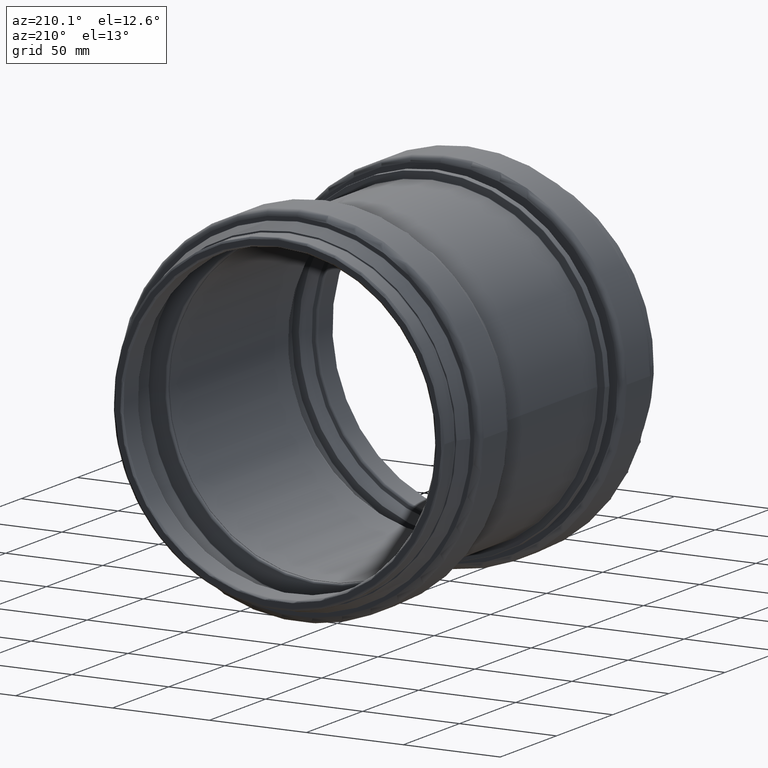
[diagram: clean part render]
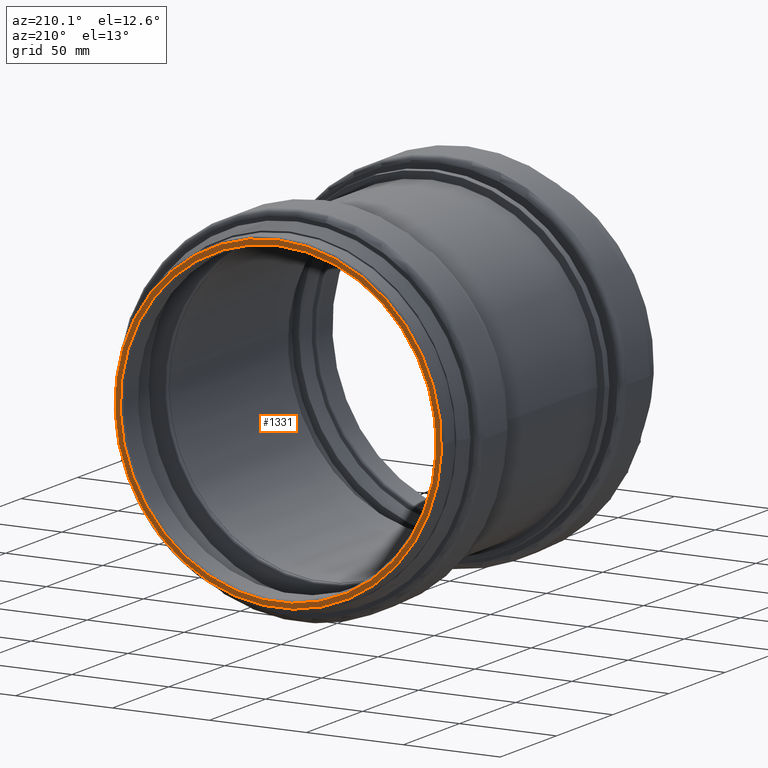
[diagram: same view with one face highlighted and labeled with its STEP entity id]
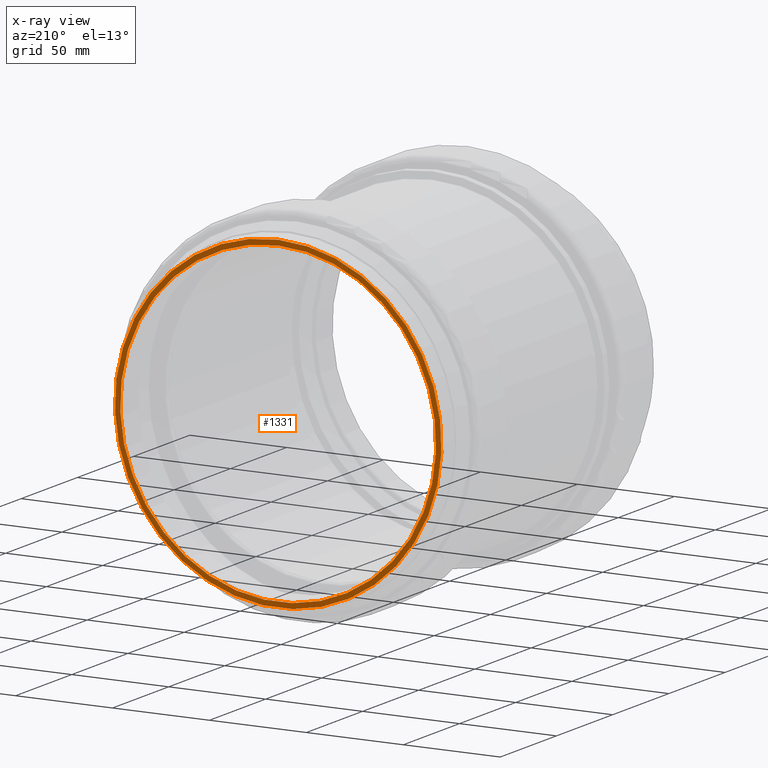
[diagram: x-ray of the same camera — body ghosted, the highlighted face saturated]
A machine part, auxiliary view. The second image highlights one B-rep face of the part: STEP entity #1331.
The next image is the same camera in x-ray: the body ghosted, the highlighted face saturated — about 0% of this face is hidden behind the body in this view.
In plain terms, the highlighted planar face has unit normal (0, 1, 0).
Its self-contained STEP definition (entity closure, byte-faithful):
#109=FACE_BOUND('',#244,.T.);
#119=PLANE('',#1518);
#162=FACE_OUTER_BOUND('',#243,.T.);
#243=EDGE_LOOP('',(#982));
#244=EDGE_LOOP('',(#983));
#370=CIRCLE('',#1514,81.5);
#374=CIRCLE('',#1519,84.2);
#520=VERTEX_POINT('',#2359);
#523=VERTEX_POINT('',#2367);
#684=EDGE_CURVE('',#520,#520,#370,.T.);
#688=EDGE_CURVE('',#523,#523,#374,.T.);
#982=ORIENTED_EDGE('',*,*,#688,.F.);
#983=ORIENTED_EDGE('',*,*,#684,.T.);
#1331=ADVANCED_FACE('',(#162,#109),#119,.T.);
#1514=AXIS2_PLACEMENT_3D('',#2360,#1896,#1897);
#1518=AXIS2_PLACEMENT_3D('',#2366,#1904,#1905);
#1519=AXIS2_PLACEMENT_3D('',#2368,#1906,#1907);
#1896=DIRECTION('center_axis',(0.,-1.,0.));
#1897=DIRECTION('ref_axis',(1.,0.,0.));
#1904=DIRECTION('center_axis',(0.,1.,0.));
#1905=DIRECTION('ref_axis',(0.,0.,1.));
#1906=DIRECTION('center_axis',(0.,-1.,0.));
#1907=DIRECTION('ref_axis',(1.,0.,0.));
#2359=CARTESIAN_POINT('',(4.95427156261608,94.,81.5));
#2360=CARTESIAN_POINT('Origin',(4.95427156261609,94.,0.));
#2366=CARTESIAN_POINT('Origin',(89.1542715626161,94.,0.));
#2367=CARTESIAN_POINT('',(4.95427156261608,94.,84.2));
#2368=CARTESIAN_POINT('Origin',(4.95427156261609,94.,0.));